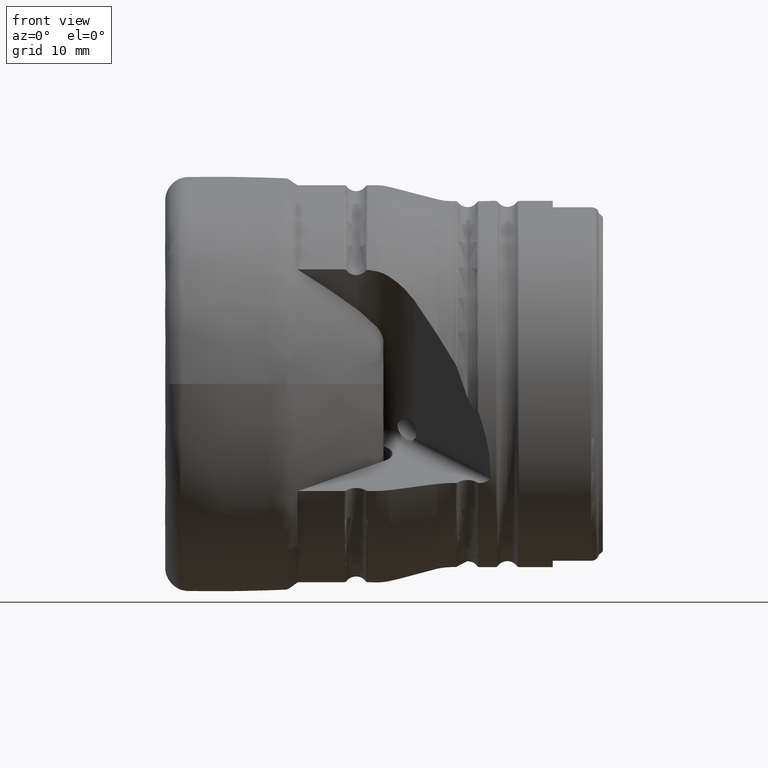
[diagram: clean part render]
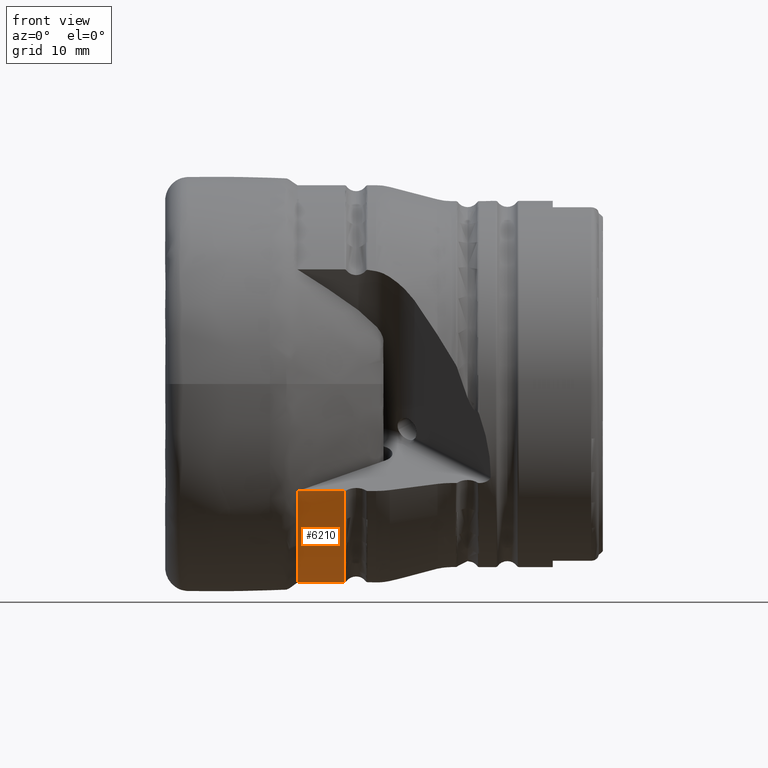
[diagram: same view with one face highlighted and labeled with its STEP entity id]
A machine part, front view. The second image highlights one B-rep face of the part: STEP entity #6210.
In plain terms, the highlighted cylindrical surface (partial cylindrical patch) has radius 25 mm, axis along (-1, -0, -0).
Its self-contained STEP definition (entity closure, byte-faithful):
#123 = ORIENTED_EDGE ( 'NONE', *, *, #1845, .F. ) ;
#124 = ORIENTED_EDGE ( 'NONE', *, *, #2123, .F. ) ;
#126 = ORIENTED_EDGE ( 'NONE', *, *, #2122, .T. ) ;
#127 = ORIENTED_EDGE ( 'NONE', *, *, #2124, .T. ) ;
#135 = ORIENTED_EDGE ( 'NONE', *, *, #2126, .F. ) ;
#896 = CARTESIAN_POINT ( 'NONE',  ( 15.35477149008767100, -20.96662969426086300, -13.61618299171018400 ) ) ;
#902 = DIRECTION ( 'NONE',  ( -1.000000000000000000, -0.0000000000000000000, -0.0000000000000000000 ) ) ;
#906 = CARTESIAN_POINT ( 'NONE',  ( 15.38204944200359800, -21.00455335322718800, -13.55778694087259100 ) ) ;
#907 = CARTESIAN_POINT ( 'NONE',  ( 1.583877956326649700E-015, -2.250784564801591200, -24.89847322312858000 ) ) ;
#908 = CARTESIAN_POINT ( 'NONE',  ( 21.26098084827865600, 0.0000000000000000000, 0.0000000000000000000 ) ) ;
#909 = DIRECTION ( 'NONE',  ( -1.000000000000000000, -0.0000000000000000000, -0.0000000000000000000 ) ) ;
#910 = DIRECTION ( 'NONE',  ( 0.0000000000000000000, 0.0000000000000000000, 1.000000000000000000 ) ) ;
#911 = CARTESIAN_POINT ( 'NONE',  ( 0.0000000000000000000, -21.07966712642609200, -13.44052208208712300 ) ) ;
#912 = DIRECTION ( 'NONE',  ( -1.000000000000000000, -0.0000000000000000000, -0.0000000000000000000 ) ) ;
#918 = CARTESIAN_POINT ( 'NONE',  ( 15.40974914298463200, -21.04223271649780700, -13.49923296366915300 ) ) ;
#919 = CARTESIAN_POINT ( 'NONE',  ( 15.43787010956672900, -21.07966712642609500, -13.44052208208712300 ) ) ;
#997 = CARTESIAN_POINT ( 'NONE',  ( 15.35477149008767100, -20.96662969426086300, -13.61618299171018400 ) ) ;
#1041 = CARTESIAN_POINT ( 'NONE',  ( 15.35477149008763900, -2.250784564801581800, -24.89847322312858300 ) ) ;
#1139 = CARTESIAN_POINT ( 'NONE',  ( 21.26098084827865600, -2.250784564801594300, -24.89847322312858300 ) ) ;
#1147 = CARTESIAN_POINT ( 'NONE',  ( 21.26098084827865600, -21.07966712642608800, -13.44052208208711900 ) ) ;
#1148 = CARTESIAN_POINT ( 'NONE',  ( 15.43787010956672900, -21.07966712642609500, -13.44052208208712300 ) ) ;
#1845 = EDGE_CURVE ( 'NONE', #3799, #3752, #3199, .T. ) ;
#2122 = EDGE_CURVE ( 'NONE', #3898, #3906, #3442, .T. ) ;
#2123 = EDGE_CURVE ( 'NONE', #3898, #3799, #3440, .T. ) ;
#2124 = EDGE_CURVE ( 'NONE', #3906, #3907, #3443, .T. ) ;
#2126 = EDGE_CURVE ( 'NONE', #3752, #3907, #7395, .T. ) ;
#3199 = CIRCLE ( 'NONE', #6386, 24.99999999999999300 ) ;
#3440 = LINE ( 'NONE', #907, #3444 ) ;
#3442 = CIRCLE ( 'NONE', #6479, 25.00000000000000000 ) ;
#3443 = LINE ( 'NONE', #911, #3446 ) ;
#3444 = VECTOR ( 'NONE', #902, 1000.000000000000000 ) ;
#3446 = VECTOR ( 'NONE', #912, 1000.000000000000000 ) ;
#3567 = FACE_OUTER_BOUND ( 'NONE', #7090, .T. ) ;
#3571 = CYLINDRICAL_SURFACE ( 'NONE', #6531, 25.00000000000000000 ) ;
#3752 = VERTEX_POINT ( 'NONE', #997 ) ;
#3799 = VERTEX_POINT ( 'NONE', #1041 ) ;
#3898 = VERTEX_POINT ( 'NONE', #1139 ) ;
#3906 = VERTEX_POINT ( 'NONE', #1147 ) ;
#3907 = VERTEX_POINT ( 'NONE', #1148 ) ;
#4307 = DIRECTION ( 'NONE',  ( -1.000000000000000000, -0.0000000000000000000, -0.0000000000000000000 ) ) ;
#4309 = DIRECTION ( 'NONE',  ( 0.0000000000000000000, 0.0000000000000000000, 1.000000000000000000 ) ) ;
#4312 = CARTESIAN_POINT ( 'NONE',  ( 0.0000000000000000000, 0.0000000000000000000, 0.0000000000000000000 ) ) ;
#6082 = DIRECTION ( 'NONE',  ( -1.387778780781446200E-016, 1.000000000000000000, 0.0000000000000000000 ) ) ;
#6088 = CARTESIAN_POINT ( 'NONE',  ( 15.35477149008764100, -6.179815690781517700E-015, 0.0000000000000000000 ) ) ;
#6089 = DIRECTION ( 'NONE',  ( -1.000000000000000000, -1.219038838927857800E-016, 0.0000000000000000000 ) ) ;
#6210 = ADVANCED_FACE ( 'NONE', ( #3567 ), #3571, .T. ) ;
#6386 = AXIS2_PLACEMENT_3D ( 'NONE', #6088, #6089, #6082 ) ;
#6479 = AXIS2_PLACEMENT_3D ( 'NONE', #908, #909, #910 ) ;
#6531 = AXIS2_PLACEMENT_3D ( 'NONE', #4312, #4307, #4309 ) ;
#7090 = EDGE_LOOP ( 'NONE', ( #123, #124, #126, #127, #135 ) ) ;
#7395 =( BOUNDED_CURVE ( )  B_SPLINE_CURVE ( 3, ( #896, #906, #918, #919 ),
 .UNSPECIFIED., .F., .F. ) 
 B_SPLINE_CURVE_WITH_KNOTS ( ( 4, 4 ),
 ( 0.2637653746145096600, 0.2721209208062832500 ),
 .UNSPECIFIED. ) 
 CURVE ( )  GEOMETRIC_REPRESENTATION_ITEM ( )  RATIONAL_B_SPLINE_CURVE ( ( 1.000000000000000000, 0.9999941820791150600, 0.9999941820791150600, 1.000000000000000000 ) ) 
 REPRESENTATION_ITEM ( '' )  );